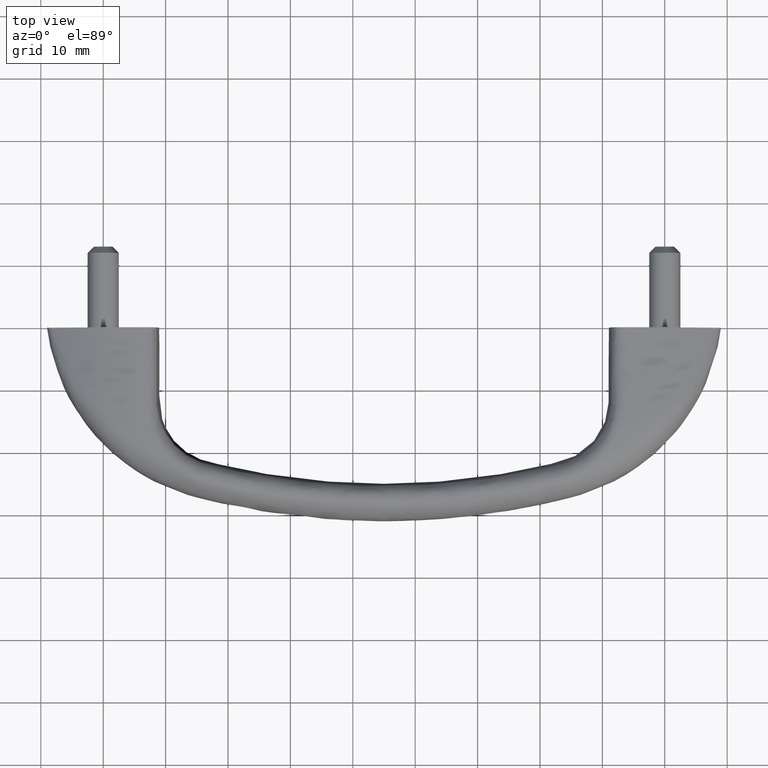
[diagram: clean part render]
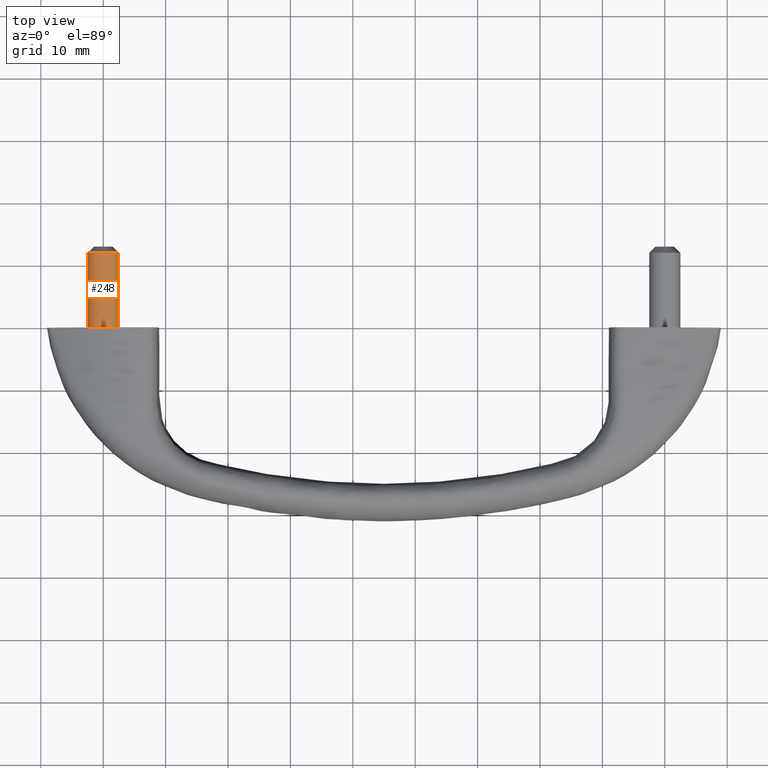
[diagram: same view with one face highlighted and labeled with its STEP entity id]
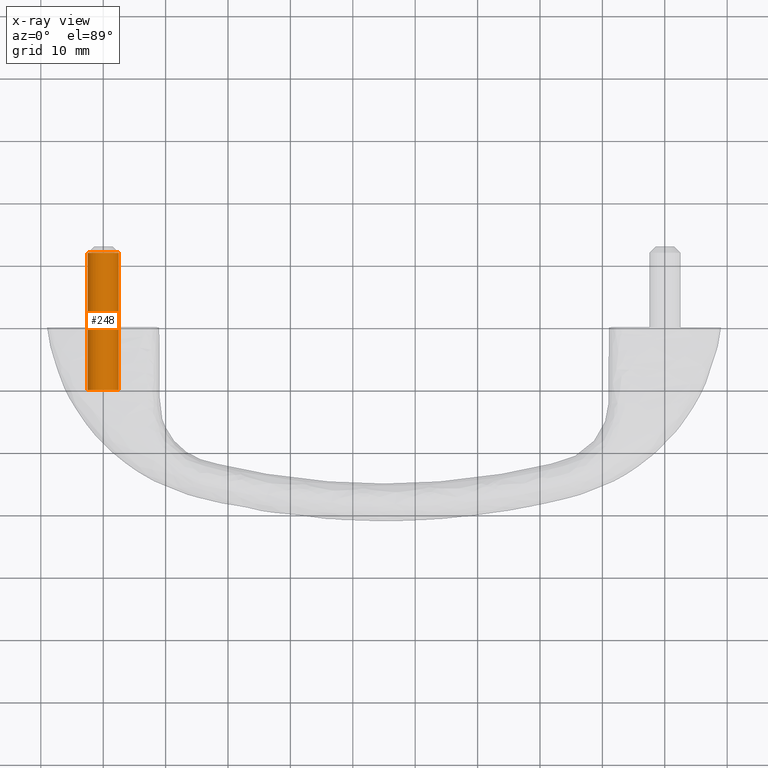
[diagram: x-ray of the same camera — body ghosted, the highlighted face saturated]
A machine part, top view. The second image highlights one B-rep face of the part: STEP entity #248.
The next image is the same camera in x-ray: the body ghosted, the highlighted face saturated — about 0% of this face is hidden behind the body in this view.
In plain terms, the highlighted face is a freeform B-spline surface patch.
Its self-contained STEP definition (entity closure, byte-faithful):
#62=CARTESIAN_POINT('',(2.483672983584738,-0.999999999999885,-0.285251661891087));
#63=VERTEX_POINT('',#62);
#79=CARTESIAN_POINT('',(2.483672983583585,-23.0,-0.285251661901134));
#80=VERTEX_POINT('',#79);
#81=CARTESIAN_POINT('',(2.483672983583585,-23.0,-0.285251661901134));
#82=CARTESIAN_POINT('',(2.483672983584738,-0.999999999999885,-0.285251661891087));
#83=QUASI_UNIFORM_CURVE('',1,(#81,#82),.UNSPECIFIED.,.F.,.U.);
#84=EDGE_CURVE('',#80,#63,#83,.T.);
#101=CARTESIAN_POINT('',(-2.495336996052905,-23.0,-0.152621348867091));
#102=VERTEX_POINT('',#101);
#116=CARTESIAN_POINT('',(-2.493815165229621,-1.000000000090359,-0.174384544776525));
#117=VERTEX_POINT('',#116);
#118=CARTESIAN_POINT('',(-2.495336996052905,-23.0,-0.152621348867091));
#119=CARTESIAN_POINT('',(-2.493815165229621,-1.000000000090359,-0.174384544776525));
#120=QUASI_UNIFORM_CURVE('',1,(#118,#119),.UNSPECIFIED.,.F.,.U.);
#121=EDGE_CURVE('',#102,#117,#120,.T.);
#139=CARTESIAN_POINT('',(-2.491745979311498,-23.550000000000008,-0.211333953601345));
#140=CARTESIAN_POINT('',(-2.493532695324642,-23.550000000000001,-0.182121405009592));
#141=CARTESIAN_POINT('',(-2.647958344891884,-23.550000000000004,2.342715647217599));
#142=CARTESIAN_POINT('',(-0.152621348837147,-23.550000000000011,2.495336996054745));
#143=CARTESIAN_POINT('',(2.342715647217591,-23.550000000000004,2.647958344891892));
#144=CARTESIAN_POINT('',(2.495336996054737,-23.550000000000011,0.152621348837155));
#145=CARTESIAN_POINT('',(2.508759095987014,-23.550000000000008,-0.066828045241360));
#146=CARTESIAN_POINT('',(2.481381535537035,-23.549999999999997,-0.305203193715474));
#147=CARTESIAN_POINT('',(2.479078468734913,-23.550000000000011,-0.325255889495462));
#148=CARTESIAN_POINT('',(-2.491745979311498,-0.436249999999884,-0.211333953601345));
#149=CARTESIAN_POINT('',(-2.493532695324642,-0.436249999999884,-0.182121405009592));
#150=CARTESIAN_POINT('',(-2.647958344891884,-0.436249999999884,2.342715647217599));
#151=CARTESIAN_POINT('',(-0.152621348837147,-0.436249999999884,2.495336996054745));
#152=CARTESIAN_POINT('',(2.342715647217591,-0.436249999999884,2.647958344891892));
#153=CARTESIAN_POINT('',(2.495336996054737,-0.436249999999884,0.152621348837155));
#154=CARTESIAN_POINT('',(2.508759095987014,-0.436249999999884,-0.066828045241360));
#155=CARTESIAN_POINT('',(2.481381535537035,-0.436249999999884,-0.305203193715474));
#156=CARTESIAN_POINT('',(2.479078468734913,-0.436249999999884,-0.325255889495462));
#164=(BOUNDED_SURFACE()B_SPLINE_SURFACE(2,1,((#139,#148),(#140,#149),(#141,#150),(#142,#151),(#143,#152),(#144,#153),(#145,#154),(#146,#155),(#147,#156)),.UNSPECIFIED.,.F.,.F.,.U.)B_SPLINE_SURFACE_WITH_KNOTS((3,1,2,2,1,3),(2,2),(0.0,0.069592887220219,4.211728510951284,8.353864134682349,8.850920409530078,8.894954838504741),(0.0,23.113750000000120),.UNSPECIFIED.)GEOMETRIC_REPRESENTATION_ITEM()RATIONAL_B_SPLINE_SURFACE(((1.009841920495153,1.009841920495153),(1.004920960247577,1.004920960247577),(0.707106781186548,0.707106781186548),(1.0,1.0),(0.707106781186548,0.707106781186548),(1.0,1.0),(0.964852813742386,0.964852813742386),(0.935774536893240,0.935774536893240),(0.933408121599882,0.933408121599882)))REPRESENTATION_ITEM('')SURFACE());
#165=CARTESIAN_POINT('',(2.492293334404505,-1.000000000180833,0.196147740715929));
#166=VERTEX_POINT('',#165);
#167=CARTESIAN_POINT('',(2.492293334404505,-1.000000000180833,0.196147740715929));
#168=CARTESIAN_POINT('',(2.500000000000070,-0.999999999999886,0.098225268907704));
#169=CARTESIAN_POINT('',(2.500000000000070,-0.999999999999886,8.633475E-015));
#170=CARTESIAN_POINT('',(2.500000000000069,-0.999999999999886,-0.143093087603809));
#171=CARTESIAN_POINT('',(2.483672983584738,-0.999999999999885,-0.285251661891087));
#179=(BOUNDED_CURVE()B_SPLINE_CURVE(2,(#167,#168,#169,#170,#171),.UNSPECIFIED.,.F.,.U.)B_SPLINE_CURVE_WITH_KNOTS((3,2,3),(0.236331300442640,0.250000000000000,0.269767755882086),.UNSPECIFIED.)CURVE()GEOMETRIC_REPRESENTATION_ITEM()RATIONAL_B_SPLINE_CURVE((0.969723355775034,0.983986122358603,1.0,0.976840633403909,0.957343736449861))REPRESENTATION_ITEM(''));
#180=EDGE_CURVE('',#166,#63,#179,.T.);
#181=ORIENTED_EDGE('',*,*,#180,.F.);
#182=CARTESIAN_POINT('',(0.0,-0.999999999999886,2.500000000000079));
#183=VERTEX_POINT('',#182);
#184=CARTESIAN_POINT('',(0.0,-0.999999999999886,2.500000000000079));
#185=CARTESIAN_POINT('',(2.310976226574545,-0.999999999999886,2.500000000000079));
#186=CARTESIAN_POINT('',(2.492293334404506,-1.000000000180833,0.196147740715929));
#194=(BOUNDED_CURVE()B_SPLINE_CURVE(2,(#184,#185,#186),.UNSPECIFIED.,.F.,.U.)B_SPLINE_CURVE_WITH_KNOTS((3,3),(0.0,0.236331300442640),.UNSPECIFIED.)CURVE()GEOMETRIC_REPRESENTATION_ITEM()RATIONAL_B_SPLINE_CURVE((1.0,0.723120658827945,0.969723355775034))REPRESENTATION_ITEM(''));
#195=EDGE_CURVE('',#183,#166,#194,.T.);
#196=ORIENTED_EDGE('',*,*,#195,.F.);
#197=CARTESIAN_POINT('',(-2.493815165229620,-1.000000000090359,-0.174384544776525));
#198=CARTESIAN_POINT('',(-2.499906585780105,-1.000000000088886,-0.087295391918130));
#199=CARTESIAN_POINT('',(-2.499908243824735,-1.000000000087306,0.000006416216906));
#200=CARTESIAN_POINT('',(-2.499955724010533,-1.000000000042070,2.500003096078912));
#201=CARTESIAN_POINT('',(0.0,-0.999999999999886,2.500000000000079));
#209=(BOUNDED_CURVE()B_SPLINE_CURVE(2,(#197,#198,#199,#200,#201),.UNSPECIFIED.,.F.,.U.)B_SPLINE_CURVE_WITH_KNOTS((3,2,3),(0.737829682949222,0.750000000000000,1.0),.UNSPECIFIED.)CURVE()GEOMETRIC_REPRESENTATION_ITEM()RATIONAL_B_SPLINE_CURVE((0.972871408608044,0.985741586660070,1.0,0.707106781186547,1.0))REPRESENTATION_ITEM(''));
#210=EDGE_CURVE('',#117,#183,#209,.T.);
#211=ORIENTED_EDGE('',*,*,#210,.F.);
#212=ORIENTED_EDGE('',*,*,#121,.F.);
#213=CARTESIAN_POINT('',(0.0,-23.0,2.500000000000079));
#214=VERTEX_POINT('',#213);
#215=CARTESIAN_POINT('',(-2.495336996052905,-23.000000000000004,-0.152621348867091));
#216=CARTESIAN_POINT('',(-2.500000000000070,-22.999999999999996,-0.076381908276503));
#217=CARTESIAN_POINT('',(-2.500000000000070,-23.0,8.633475E-015));
#218=CARTESIAN_POINT('',(-2.500000000000070,-22.999999999999996,2.500000000000078));
#219=CARTESIAN_POINT('',(0.0,-23.0,2.500000000000079));
#227=(BOUNDED_CURVE()B_SPLINE_CURVE(2,(#215,#216,#217,#218,#219),.UNSPECIFIED.,.F.,.U.)B_SPLINE_CURVE_WITH_KNOTS((3,2,3),(0.739332962237826,0.750000000000000,1.0),.UNSPECIFIED.)CURVE()GEOMETRIC_REPRESENTATION_ITEM()RATIONAL_B_SPLINE_CURVE((0.976072041664324,0.987502787898529,1.0,0.707106781186547,1.0))REPRESENTATION_ITEM(''));
#228=EDGE_CURVE('',#102,#214,#227,.T.);
#229=ORIENTED_EDGE('',*,*,#228,.T.);
#230=CARTESIAN_POINT('',(0.0,-23.0,2.500000000000079));
#231=CARTESIAN_POINT('',(2.500000000000070,-22.999999999999996,2.500000000000078));
#232=CARTESIAN_POINT('',(2.500000000000070,-23.0,8.633475E-015));
#233=CARTESIAN_POINT('',(2.500000000000070,-23.000000000000004,-0.143093087613957));
#234=CARTESIAN_POINT('',(2.483672983583585,-23.000000000000004,-0.285251661901134));
#242=(BOUNDED_CURVE()B_SPLINE_CURVE(2,(#230,#231,#232,#233,#234),.UNSPECIFIED.,.F.,.U.)B_SPLINE_CURVE_WITH_KNOTS((3,2,3),(0.0,0.250000000000000,0.269767755883455),.UNSPECIFIED.)CURVE()GEOMETRIC_REPRESENTATION_ITEM()RATIONAL_B_SPLINE_CURVE((1.0,0.707106781186547,1.0,0.976840633402305,0.957343736447160))REPRESENTATION_ITEM(''));
#243=EDGE_CURVE('',#214,#80,#242,.T.);
#244=ORIENTED_EDGE('',*,*,#243,.T.);
#245=ORIENTED_EDGE('',*,*,#84,.T.);
#246=EDGE_LOOP('',(#181,#196,#211,#212,#229,#244,#245));
#247=FACE_OUTER_BOUND('',#246,.T.);
#248=ADVANCED_FACE('',(#247),#164,.T.);